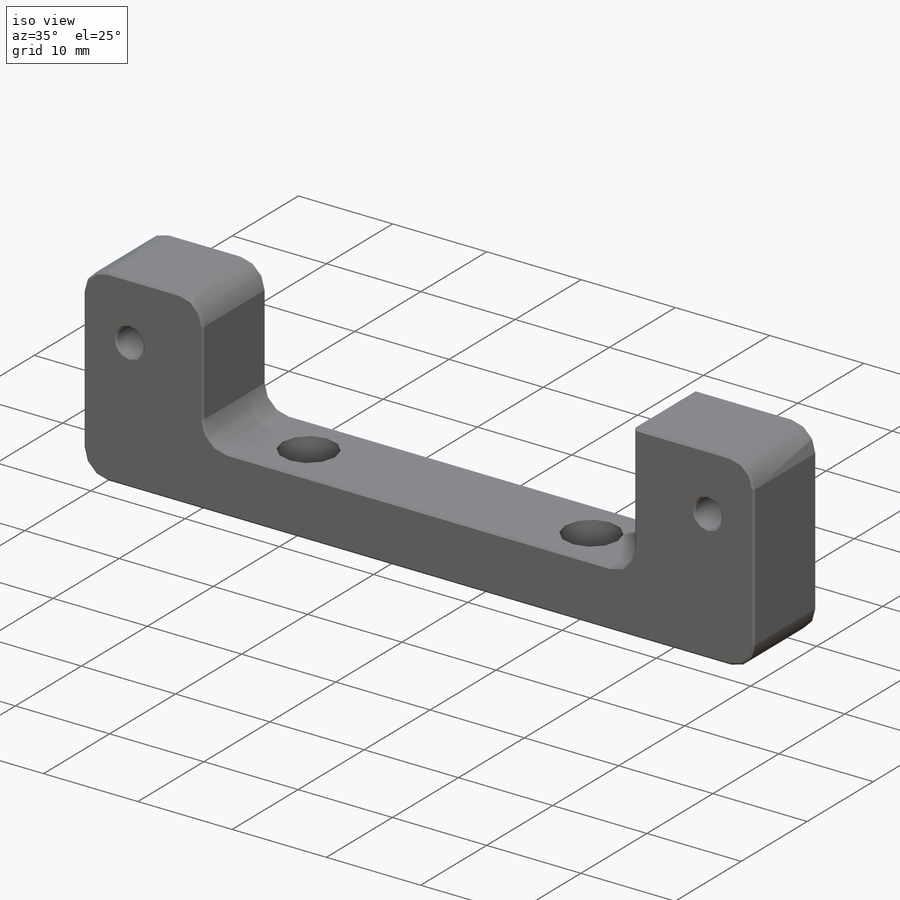
[diagram: iso view]
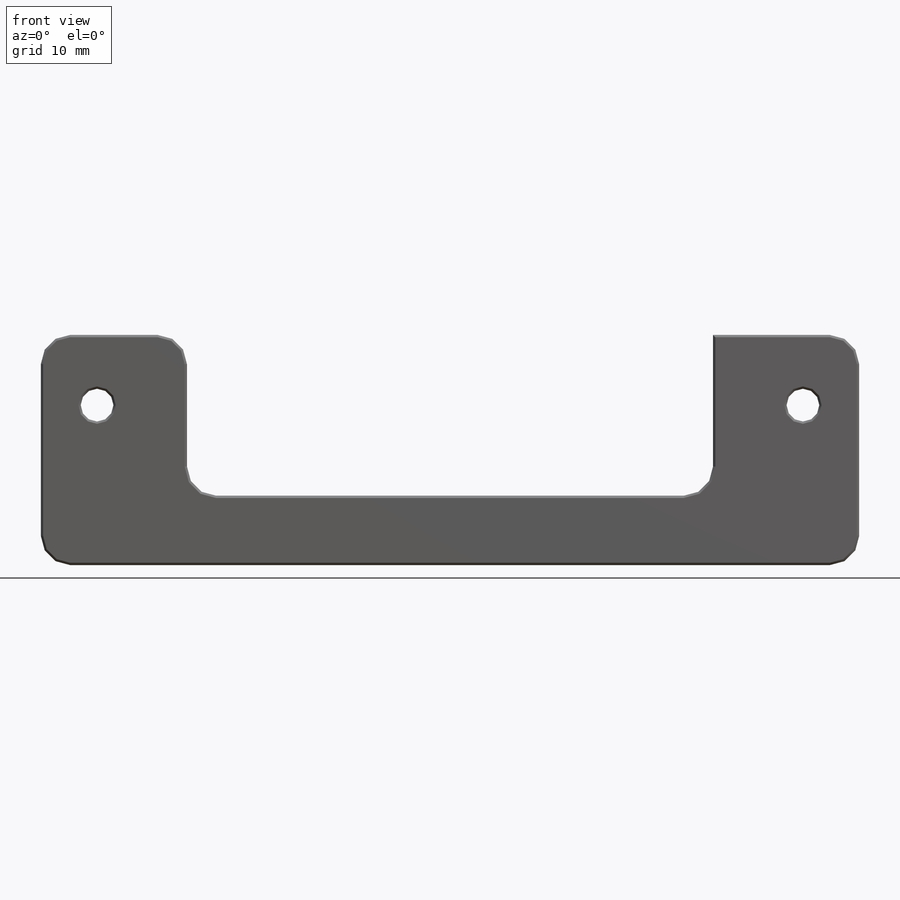
[diagram: front view]
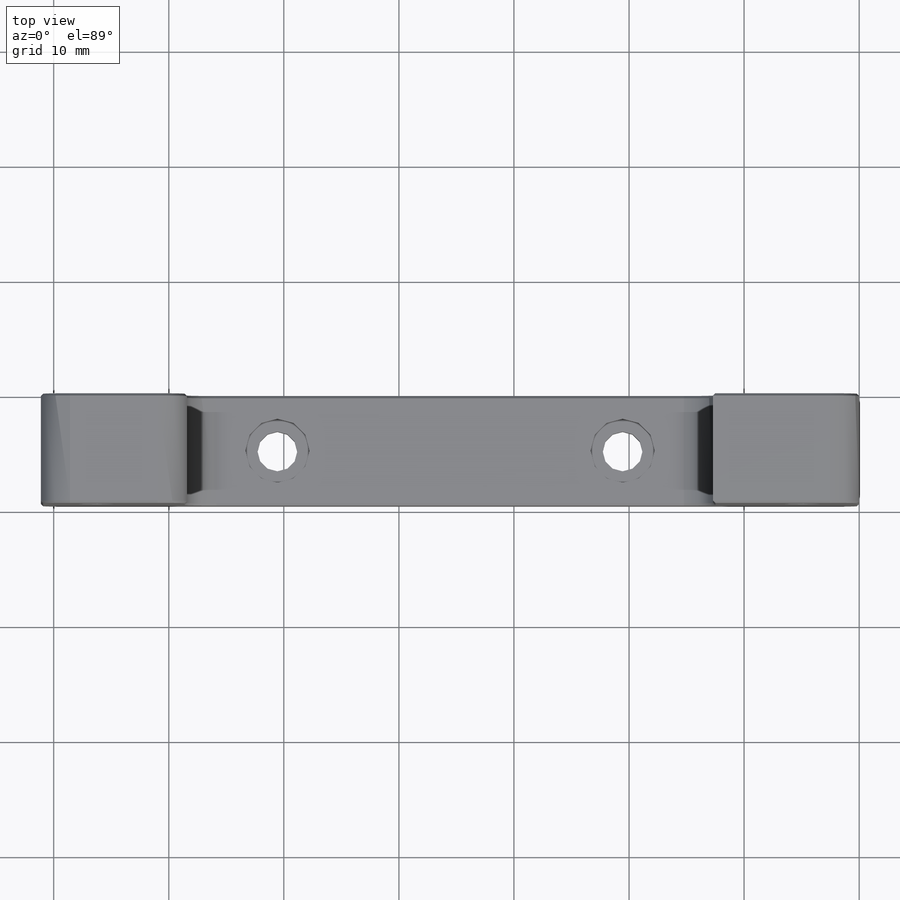
[diagram: top view]
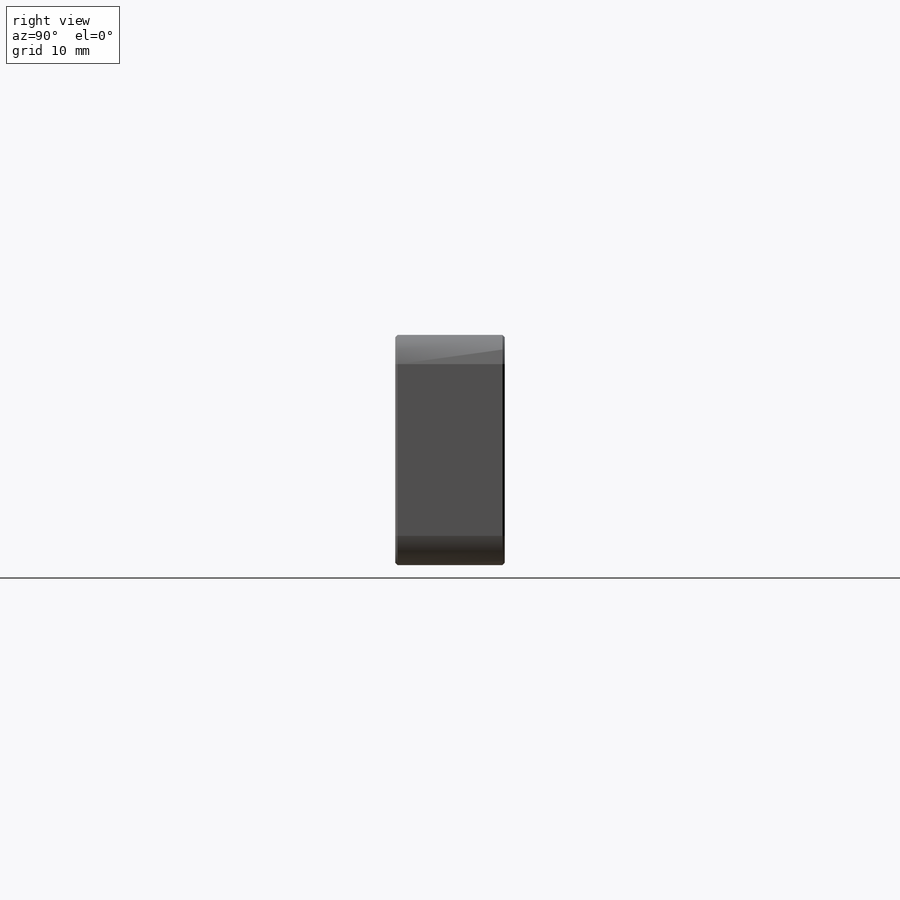
[diagram: right view]
SOLIDWORKS PART (.sldprt)
format: sldprt  version: not decoded by parser v0  size: 296,448 bytes
history: native  units: mm
features: sketch x6, plane x2, hole x2, material x1, extrude x1, cut_extrude x1, fillet x1, chamfer x1 + 1 further entry (+13 scaffold rows collapsed)
feature tree (29):
  scaffold x13  (default folders/planes/origin — collapsed)
  material  "PEEK"
  "Origin"  ID=-1
  sketch  "Sketch1"  dims[D1=71.12mm D2=20.0mm]
  extrude  "Extrude1"  Depth=9.525mm
  sketch  "Sketch2"  dims[D1=13.97mm D2=45.72mm D3=12.7mm]
  cut_extrude  "Extrude2"  [1 undecoded]
  plane  "Plane1"
  plane  "Plane2"
  hole  "Hole1"  Diameter=3.4544mm Depth=6.03mm
  sketch  "3DSketch1"  dims[D1=15.0mm D2=15.0mm]
  sketch  "Sketch3"  dims[hole-wizard template sketch: 41 standard entries collapsed; hole parameters kept: c12.Thru Hole Dia.=3.4544mm c12.Thru Hole Depth=6.03mm c12.C'Bore Dia.=5.588mm c12.C'Bore Depth=3.048mm]
  hole  "#4-40 Tapped Hole1"  Diameter=2.2606mm Depth=12.6746mm
  sketch  "3DSketch2"  dims[D1=6.1mm D2=30.6705mm D3=30.6705mm]
  sketch  "Sketch4"  dims[hole-wizard template sketch: 29 standard entries collapsed; hole parameters kept: c8.Tap Drill Depth=12.6746mm c8.Thread Major Dia.=2.8448mm c8.Thread Depth=10.7696mm c8.D5=~14.816244mm c8.Drill Angle=118.0deg]
  fillet  "Fillet1"  Radius=2.54mm
  chamfer  "Chamfer1"  Distance=0.2mm Angle=45deg
decode coverage: 11 of 12 modeling features carry decoded parameters; 1 rows unclassified (native names shown)
note: ~ marks probable driven/reference dimensions
note: 1 parameter value undecoded
note: suppression state not decoded; provenance and decode notes live in map.json
